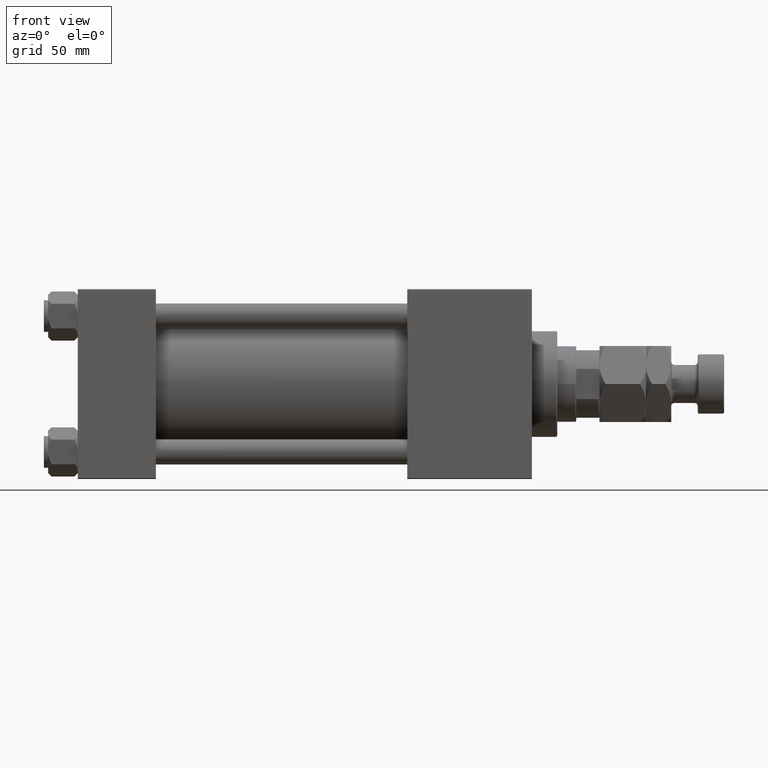
[diagram: clean part render]
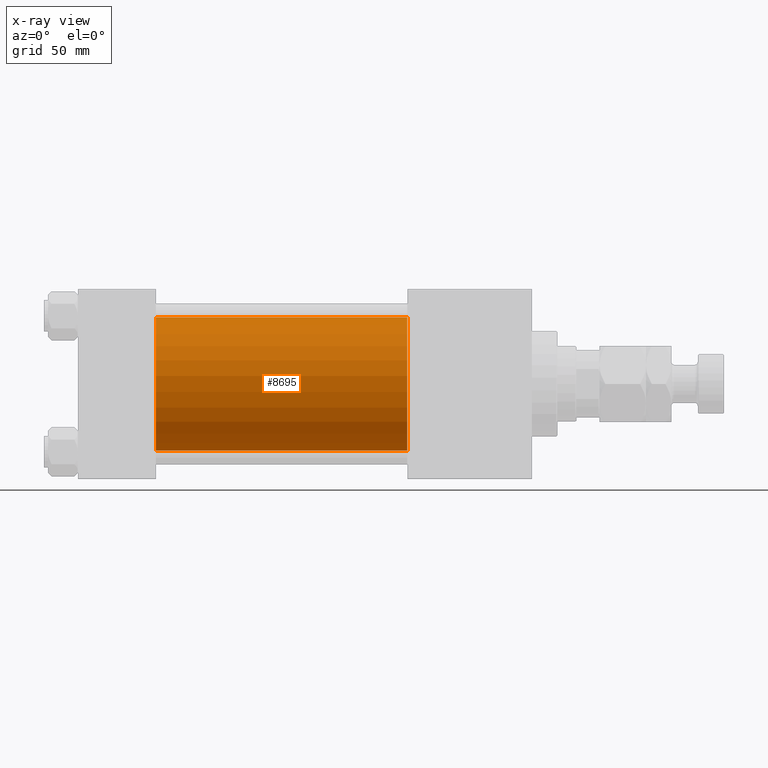
[diagram: x-ray — body ghosted, one internal face saturated and labeled with its STEP entity id]
A machine part, front view, then the same camera in x-ray: the body is ghosted and one INTERNAL B-rep face — a face not visible from any outside direction — is saturated and labeled: STEP entity #8695.
In plain terms, the highlighted cylindrical surface (partial cylindrical patch) has radius 31.5 mm, axis along (-1, -0, -0).
Its self-contained STEP definition (entity closure, byte-faithful):
#788 = VECTOR ( 'NONE', #30892, 1000.000000000000000 ) ;
#872 = DIRECTION ( 'NONE',  ( 0.000000000000000000, 0.000000000000000000, -1.000000000000000000 ) ) ;
#2814 = EDGE_CURVE ( 'NONE', #40784, #33632, #19588, .T. ) ;
#4672 = AXIS2_PLACEMENT_3D ( 'NONE', #37124, #41332, #872 ) ;
#5165 = CYLINDRICAL_SURFACE ( 'NONE', #51336, 31.50000000000000000 ) ;
#8695 = ADVANCED_FACE ( 'NONE', ( #13316 ), #5165, .F. ) ;
#9238 = CARTESIAN_POINT ( 'NONE',  ( 37.00000000000000000, 1.255552203348951850E-15, -31.50000000000000000 ) ) ;
#9750 = DIRECTION ( 'NONE',  ( 1.000000000000000000, 0.000000000000000000, 0.000000000000000000 ) ) ;
#11861 = ORIENTED_EDGE ( 'NONE', *, *, #16854, .F. ) ;
#12221 = CIRCLE ( 'NONE', #12252, 31.50000000000000000 ) ;
#12252 = AXIS2_PLACEMENT_3D ( 'NONE', #33401, #9750, #13950 ) ;
#13053 = DIRECTION ( 'NONE',  ( 0.000000000000000000, 0.000000000000000000, 1.000000000000000000 ) ) ;
#13316 = FACE_OUTER_BOUND ( 'NONE', #18999, .T. ) ;
#13950 = DIRECTION ( 'NONE',  ( 0.000000000000000000, 0.000000000000000000, -1.000000000000000000 ) ) ;
#15886 = CARTESIAN_POINT ( 'NONE',  ( 156.0000000000000000, -2.602085213965210642E-15, 31.50000000000000000 ) ) ;
#16167 = ORIENTED_EDGE ( 'NONE', *, *, #2814, .T. ) ;
#16854 = EDGE_CURVE ( 'NONE', #21676, #36188, #39548, .T. ) ;
#18999 = EDGE_LOOP ( 'NONE', ( #20251, #16167, #43182, #11861 ) ) ;
#19588 = LINE ( 'NONE', #23019, #788 ) ;
#20251 = ORIENTED_EDGE ( 'NONE', *, *, #28539, .T. ) ;
#21676 = VERTEX_POINT ( 'NONE', #49027 ) ;
#23019 = CARTESIAN_POINT ( 'NONE',  ( 156.0000000000000000, 1.255552203348951850E-15, -31.50000000000000000 ) ) ;
#25784 = CIRCLE ( 'NONE', #4672, 31.50000000000000000 ) ;
#28539 = EDGE_CURVE ( 'NONE', #21676, #40784, #12221, .T. ) ;
#30892 = DIRECTION ( 'NONE',  ( -1.000000000000000000, -0.000000000000000000, -0.000000000000000000 ) ) ;
#31256 = VECTOR ( 'NONE', #47673, 1000.000000000000000 ) ;
#31350 = CARTESIAN_POINT ( 'NONE',  ( 37.00000000000000000, -2.602085213965210642E-15, 31.50000000000000000 ) ) ;
#32762 = CARTESIAN_POINT ( 'NONE',  ( 156.0000000000000000, -2.602085213965210642E-15, 0.000000000000000000 ) ) ;
#33401 = CARTESIAN_POINT ( 'NONE',  ( 156.0000000000000000, -2.602085213965210642E-15, 0.000000000000000000 ) ) ;
#33632 = VERTEX_POINT ( 'NONE', #9238 ) ;
#36188 = VERTEX_POINT ( 'NONE', #31350 ) ;
#37124 = CARTESIAN_POINT ( 'NONE',  ( 37.00000000000000000, -2.602085213965210642E-15, 0.000000000000000000 ) ) ;
#39548 = LINE ( 'NONE', #15886, #31256 ) ;
#40530 = CARTESIAN_POINT ( 'NONE',  ( 156.0000000000000000, 1.255552203348951850E-15, -31.50000000000000000 ) ) ;
#40784 = VERTEX_POINT ( 'NONE', #40530 ) ;
#41332 = DIRECTION ( 'NONE',  ( 1.000000000000000000, 0.000000000000000000, 0.000000000000000000 ) ) ;
#42827 = EDGE_CURVE ( 'NONE', #36188, #33632, #25784, .T. ) ;
#43182 = ORIENTED_EDGE ( 'NONE', *, *, #42827, .F. ) ;
#47673 = DIRECTION ( 'NONE',  ( -1.000000000000000000, -0.000000000000000000, -0.000000000000000000 ) ) ;
#49027 = CARTESIAN_POINT ( 'NONE',  ( 156.0000000000000000, -2.602085213965210642E-15, 31.50000000000000000 ) ) ;
#49558 = DIRECTION ( 'NONE',  ( -1.000000000000000000, -0.000000000000000000, -0.000000000000000000 ) ) ;
#51336 = AXIS2_PLACEMENT_3D ( 'NONE', #32762, #49558, #13053 ) ;